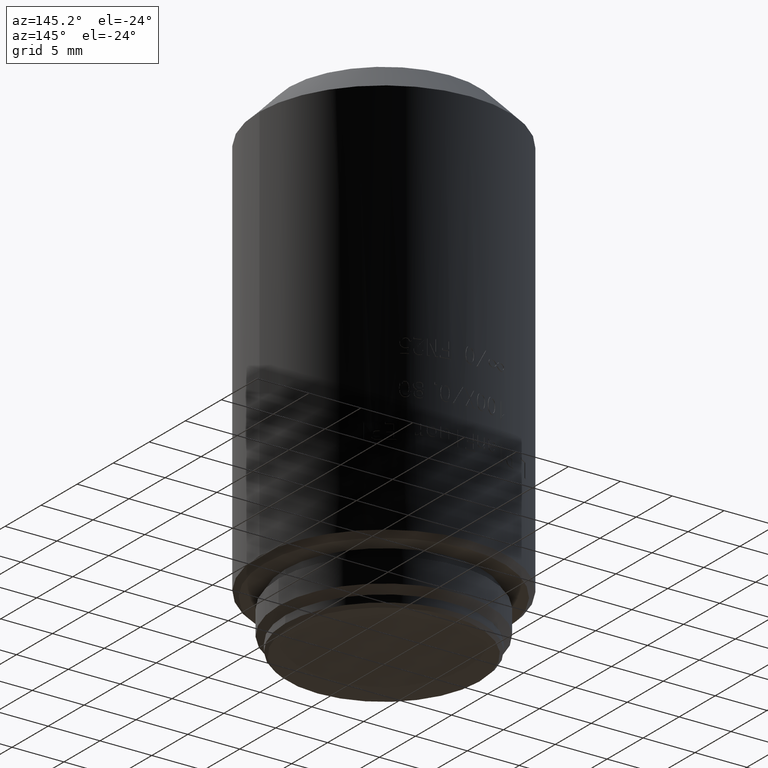
[diagram: clean part render]
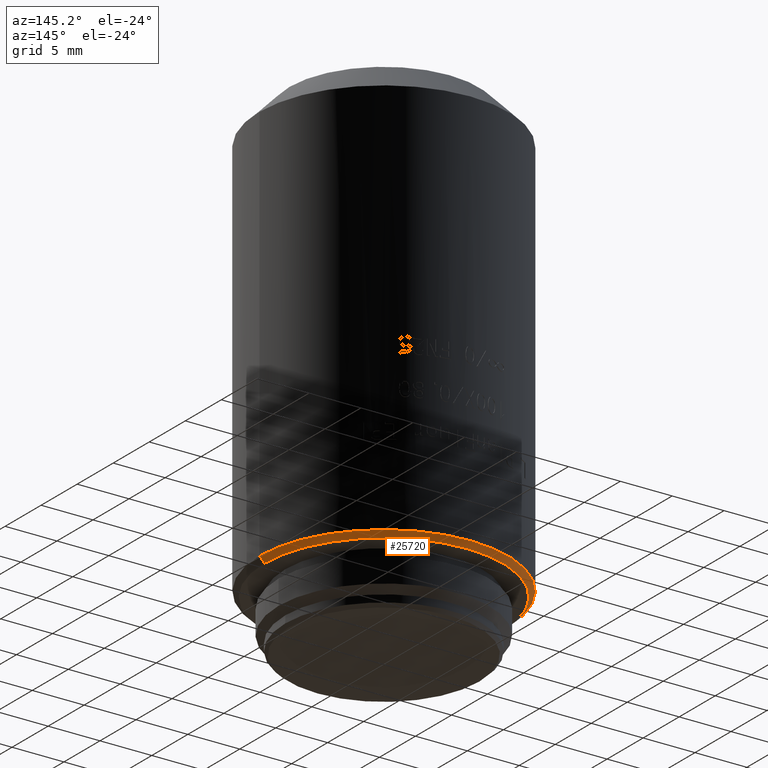
[diagram: same view with one face highlighted and labeled with its STEP entity id]
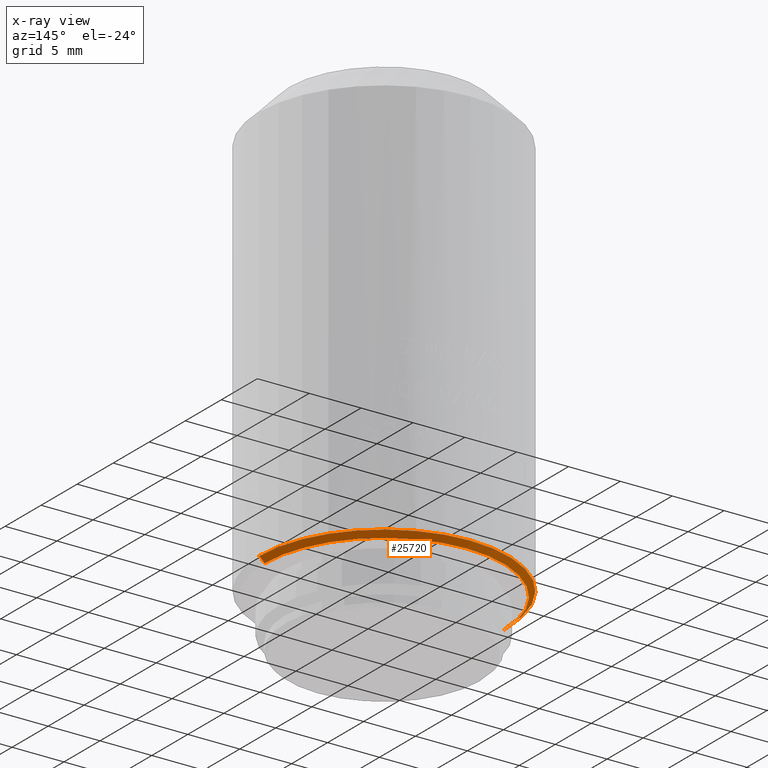
[diagram: x-ray of the same camera — body ghosted, the highlighted face saturated]
A machine part, auxiliary view. The second image highlights one B-rep face of the part: STEP entity #25720.
The next image is the same camera in x-ray: the body ghosted, the highlighted face saturated — about 0% of this face is hidden behind the body in this view.
In plain terms, the highlighted conical surface has half-angle 45 deg.
Its self-contained STEP definition (entity closure, byte-faithful):
#14 = CARTESIAN_POINT ( 'NONE',  ( 11.50000000000000000, 0.000000000000000000, 5.000000000000000000 ) ) ;
#335 = EDGE_LOOP ( 'NONE', ( #20371, #14363, #8025, #10265 ) ) ;
#2057 = EDGE_CURVE ( 'NONE', #6091, #15253, #13953, .T. ) ;
#2179 = DIRECTION ( 'NONE',  ( 0.7071067811865470176, 0.000000000000000000, 0.7071067811865480168 ) ) ;
#3024 = DIRECTION ( 'NONE',  ( 0.000000000000000000, 0.000000000000000000, 1.000000000000000000 ) ) ;
#5174 = CARTESIAN_POINT ( 'NONE',  ( 0.000000000000000000, 0.000000000000000000, 5.500000000000000000 ) ) ;
#5260 = CARTESIAN_POINT ( 'NONE',  ( 0.000000000000000000, 0.000000000000000000, 5.000000000000000000 ) ) ;
#6091 = VERTEX_POINT ( 'NONE', #23854 ) ;
#6483 = CARTESIAN_POINT ( 'NONE',  ( 11.50000000000000000, 0.000000000000000000, 5.000000000000000000 ) ) ;
#6751 = DIRECTION ( 'NONE',  ( 0.000000000000000000, 0.000000000000000000, 1.000000000000000000 ) ) ;
#6760 = CIRCLE ( 'NONE', #20511, 11.50000000000000000 ) ;
#8025 = ORIENTED_EDGE ( 'NONE', *, *, #23596, .F. ) ;
#8359 = LINE ( 'NONE', #6483, #18836 ) ;
#10265 = ORIENTED_EDGE ( 'NONE', *, *, #20300, .F. ) ;
#10600 = CONICAL_SURFACE ( 'NONE', #25646, 11.50000000000000000, 0.7853981633974476129 ) ;
#12576 = EDGE_CURVE ( 'NONE', #6091, #22919, #6760, .T. ) ;
#12726 = CIRCLE ( 'NONE', #22634, 12.00000000000000000 ) ;
#13180 = DIRECTION ( 'NONE',  ( 0.000000000000000000, 0.000000000000000000, -1.000000000000000000 ) ) ;
#13953 = LINE ( 'NONE', #14229, #17676 ) ;
#14093 = DIRECTION ( 'NONE',  ( -0.7071067811865470176, 8.659560562354926695E-17, 0.7071067811865480168 ) ) ;
#14229 = CARTESIAN_POINT ( 'NONE',  ( -11.50000000000000000, 1.408343819019456176E-15, 5.000000000000000000 ) ) ;
#14265 = CARTESIAN_POINT ( 'NONE',  ( -11.99999999999999822, 1.469576158976823750E-15, 5.500000000000000000 ) ) ;
#14363 = ORIENTED_EDGE ( 'NONE', *, *, #2057, .T. ) ;
#14628 = VERTEX_POINT ( 'NONE', #23132 ) ;
#15253 = VERTEX_POINT ( 'NONE', #14265 ) ;
#15782 = DIRECTION ( 'NONE',  ( -1.000000000000000000, 0.000000000000000000, 0.000000000000000000 ) ) ;
#17107 = DIRECTION ( 'NONE',  ( 1.000000000000000000, 0.000000000000000000, 0.000000000000000000 ) ) ;
#17676 = VECTOR ( 'NONE', #14093, 1000.000000000000000 ) ;
#18836 = VECTOR ( 'NONE', #2179, 1000.000000000000000 ) ;
#19368 = DIRECTION ( 'NONE',  ( -1.000000000000000000, 0.000000000000000000, 0.000000000000000000 ) ) ;
#19513 = FACE_OUTER_BOUND ( 'NONE', #335, .T. ) ;
#20300 = EDGE_CURVE ( 'NONE', #22919, #14628, #8359, .T. ) ;
#20371 = ORIENTED_EDGE ( 'NONE', *, *, #12576, .F. ) ;
#20511 = AXIS2_PLACEMENT_3D ( 'NONE', #21257, #13180, #19368 ) ;
#21257 = CARTESIAN_POINT ( 'NONE',  ( 0.000000000000000000, 0.000000000000000000, 5.000000000000000000 ) ) ;
#22634 = AXIS2_PLACEMENT_3D ( 'NONE', #5174, #3024, #15782 ) ;
#22919 = VERTEX_POINT ( 'NONE', #14 ) ;
#23132 = CARTESIAN_POINT ( 'NONE',  ( 11.99999999999999822, 0.000000000000000000, 5.500000000000000000 ) ) ;
#23596 = EDGE_CURVE ( 'NONE', #14628, #15253, #12726, .T. ) ;
#23854 = CARTESIAN_POINT ( 'NONE',  ( -11.50000000000000000, 1.438959988998139963E-15, 5.000000000000000000 ) ) ;
#25646 = AXIS2_PLACEMENT_3D ( 'NONE', #5260, #6751, #17107 ) ;
#25720 = ADVANCED_FACE ( 'NONE', ( #19513 ), #10600, .T. ) ;